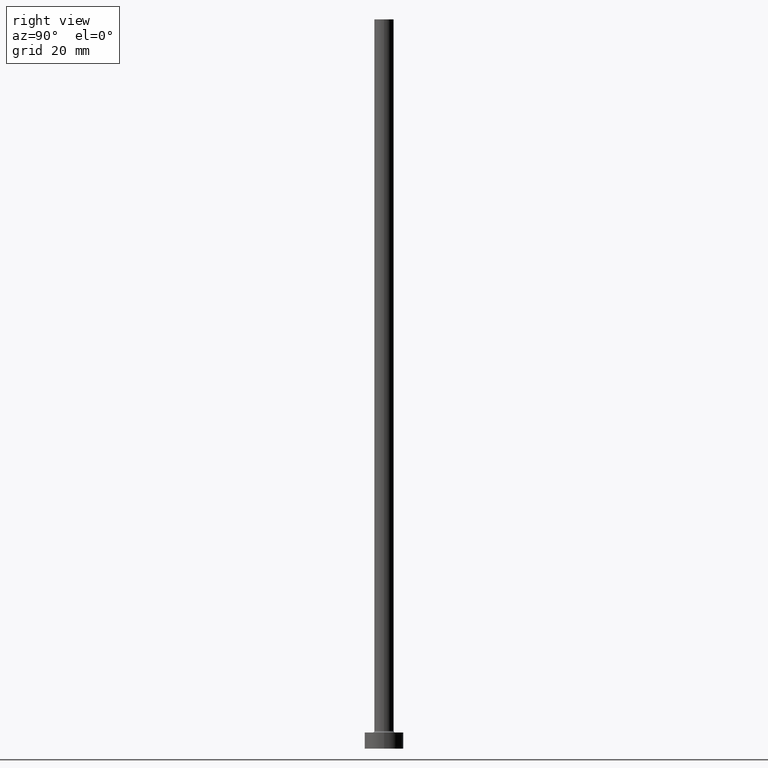
[diagram: clean part render]
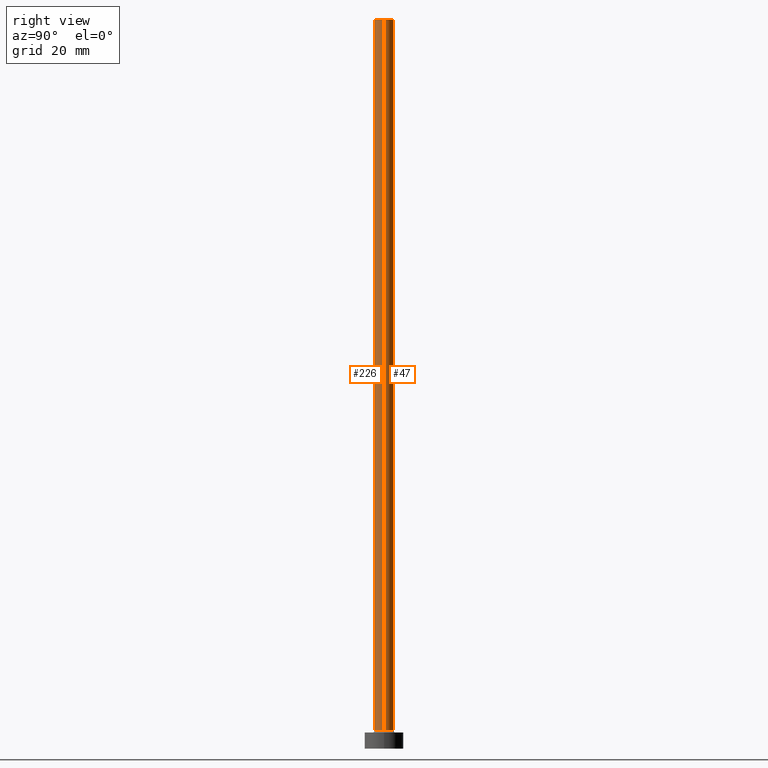
[diagram: same view with one multi-face feature highlighted, each face labeled with its STEP entity id]
A machine part, right view. The highlighted faces form ONE feature: a constant-radius fillet chain: 2 tangent blend faces with common blend radius 3 mm. The faces share edges in the B-rep.
Their STEP definitions:
[1] entity #47 (Cylinder):
#2 = LINE ( 'NONE', #175, #439 ) ;
#30 = CARTESIAN_POINT ( 'NONE',  ( -3.000000000000000444, 0.000000000000000000, 225.0000000000000000 ) ) ;
#40 = CARTESIAN_POINT ( 'NONE',  ( 0.000000000000000000, 0.000000000000000000, 225.0000000000000000 ) ) ;
#42 = AXIS2_PLACEMENT_3D ( 'NONE', #171, #131, #205 ) ;
#47 = ADVANCED_FACE ( 'NONE', ( #268 ), #413, .T. ) ;
#53 = CARTESIAN_POINT ( 'NONE',  ( 3.000000000000000444, 3.673940397442060361E-16, 5.500000000000005329 ) ) ;
#85 = VERTEX_POINT ( 'NONE', #30 ) ;
#90 = CARTESIAN_POINT ( 'NONE',  ( 0.000000000000000000, 0.000000000000000000, 225.0000000000000000 ) ) ;
#111 = VERTEX_POINT ( 'NONE', #278 ) ;
#131 = DIRECTION ( 'NONE',  ( 0.000000000000000000, 0.000000000000000000, 1.000000000000000000 ) ) ;
#139 = DIRECTION ( 'NONE',  ( -0.000000000000000000, -0.000000000000000000, -1.000000000000000000 ) ) ;
#142 = DIRECTION ( 'NONE',  ( -0.000000000000000000, -0.000000000000000000, -1.000000000000000000 ) ) ;
#144 = ORIENTED_EDGE ( 'NONE', *, *, #356, .T. ) ;
#147 = DIRECTION ( 'NONE',  ( 1.000000000000000000, 0.000000000000000000, 0.000000000000000000 ) ) ;
#160 = CIRCLE ( 'NONE', #329, 3.000000000000000444 ) ;
#163 = EDGE_CURVE ( 'NONE', #431, #111, #375, .T. ) ;
#171 = CARTESIAN_POINT ( 'NONE',  ( 0.000000000000000000, 0.000000000000000000, 5.500000000000005329 ) ) ;
#175 = CARTESIAN_POINT ( 'NONE',  ( -3.000000000000000444, 0.000000000000000000, 225.0000000000000000 ) ) ;
#182 = VECTOR ( 'NONE', #139, 1000.000000000000000 ) ;
#205 = DIRECTION ( 'NONE',  ( 1.000000000000000000, 0.000000000000000000, 0.000000000000000000 ) ) ;
#211 = VERTEX_POINT ( 'NONE', #387 ) ;
#219 = EDGE_LOOP ( 'NONE', ( #287, #144, #297, #399 ) ) ;
#231 = DIRECTION ( 'NONE',  ( -0.000000000000000000, -0.000000000000000000, -1.000000000000000000 ) ) ;
#268 = FACE_OUTER_BOUND ( 'NONE', #219, .T. ) ;
#278 = CARTESIAN_POINT ( 'NONE',  ( -3.000000000000000444, 0.000000000000000000, 5.500000000000005329 ) ) ;
#287 = ORIENTED_EDGE ( 'NONE', *, *, #326, .F. ) ;
#293 = CARTESIAN_POINT ( 'NONE',  ( 3.000000000000000444, 3.673940397442060361E-16, 225.0000000000000000 ) ) ;
#297 = ORIENTED_EDGE ( 'NONE', *, *, #163, .T. ) ;
#326 = EDGE_CURVE ( 'NONE', #211, #85, #160, .T. ) ;
#329 = AXIS2_PLACEMENT_3D ( 'NONE', #40, #361, #147 ) ;
#330 = LINE ( 'NONE', #293, #182 ) ;
#342 = EDGE_CURVE ( 'NONE', #85, #111, #2, .T. ) ;
#356 = EDGE_CURVE ( 'NONE', #211, #431, #330, .T. ) ;
#357 = AXIS2_PLACEMENT_3D ( 'NONE', #90, #231, #380 ) ;
#361 = DIRECTION ( 'NONE',  ( 0.000000000000000000, 0.000000000000000000, 1.000000000000000000 ) ) ;
#375 = CIRCLE ( 'NONE', #42, 3.000000000000000444 ) ;
#380 = DIRECTION ( 'NONE',  ( -1.000000000000000000, 0.000000000000000000, 0.000000000000000000 ) ) ;
#387 = CARTESIAN_POINT ( 'NONE',  ( 3.000000000000000444, 3.673940397442060361E-16, 225.0000000000000000 ) ) ;
#399 = ORIENTED_EDGE ( 'NONE', *, *, #342, .F. ) ;
#413 = CYLINDRICAL_SURFACE ( 'NONE', #357, 3.000000000000000444 ) ;
#431 = VERTEX_POINT ( 'NONE', #53 ) ;
#439 = VECTOR ( 'NONE', #142, 1000.000000000000000 ) ;
[2] entity #226 (Cylinder):
#2 = LINE ( 'NONE', #175, #439 ) ;
#7 = DIRECTION ( 'NONE',  ( 0.000000000000000000, 0.000000000000000000, 1.000000000000000000 ) ) ;
#12 = ORIENTED_EDGE ( 'NONE', *, *, #214, .T. ) ;
#13 = CIRCLE ( 'NONE', #351, 3.000000000000000444 ) ;
#30 = CARTESIAN_POINT ( 'NONE',  ( -3.000000000000000444, 0.000000000000000000, 225.0000000000000000 ) ) ;
#34 = DIRECTION ( 'NONE',  ( 0.000000000000000000, 0.000000000000000000, 1.000000000000000000 ) ) ;
#53 = CARTESIAN_POINT ( 'NONE',  ( 3.000000000000000444, 3.673940397442060361E-16, 5.500000000000005329 ) ) ;
#73 = EDGE_LOOP ( 'NONE', ( #152, #109, #434, #12 ) ) ;
#85 = VERTEX_POINT ( 'NONE', #30 ) ;
#97 = FACE_OUTER_BOUND ( 'NONE', #73, .T. ) ;
#109 = ORIENTED_EDGE ( 'NONE', *, *, #392, .F. ) ;
#111 = VERTEX_POINT ( 'NONE', #278 ) ;
#139 = DIRECTION ( 'NONE',  ( -0.000000000000000000, -0.000000000000000000, -1.000000000000000000 ) ) ;
#142 = DIRECTION ( 'NONE',  ( -0.000000000000000000, -0.000000000000000000, -1.000000000000000000 ) ) ;
#143 = AXIS2_PLACEMENT_3D ( 'NONE', #459, #400, #176 ) ;
#152 = ORIENTED_EDGE ( 'NONE', *, *, #356, .F. ) ;
#175 = CARTESIAN_POINT ( 'NONE',  ( -3.000000000000000444, 0.000000000000000000, 225.0000000000000000 ) ) ;
#176 = DIRECTION ( 'NONE',  ( -1.000000000000000000, 0.000000000000000000, 0.000000000000000000 ) ) ;
#182 = VECTOR ( 'NONE', #139, 1000.000000000000000 ) ;
#208 = CARTESIAN_POINT ( 'NONE',  ( 0.000000000000000000, 0.000000000000000000, 5.500000000000005329 ) ) ;
#211 = VERTEX_POINT ( 'NONE', #387 ) ;
#214 = EDGE_CURVE ( 'NONE', #111, #431, #13, .T. ) ;
#226 = ADVANCED_FACE ( 'NONE', ( #97 ), #389, .T. ) ;
#250 = CIRCLE ( 'NONE', #266, 3.000000000000000444 ) ;
#266 = AXIS2_PLACEMENT_3D ( 'NONE', #427, #7, #407 ) ;
#278 = CARTESIAN_POINT ( 'NONE',  ( -3.000000000000000444, 0.000000000000000000, 5.500000000000005329 ) ) ;
#293 = CARTESIAN_POINT ( 'NONE',  ( 3.000000000000000444, 3.673940397442060361E-16, 225.0000000000000000 ) ) ;
#312 = DIRECTION ( 'NONE',  ( 1.000000000000000000, 0.000000000000000000, 0.000000000000000000 ) ) ;
#330 = LINE ( 'NONE', #293, #182 ) ;
#342 = EDGE_CURVE ( 'NONE', #85, #111, #2, .T. ) ;
#351 = AXIS2_PLACEMENT_3D ( 'NONE', #208, #34, #312 ) ;
#356 = EDGE_CURVE ( 'NONE', #211, #431, #330, .T. ) ;
#387 = CARTESIAN_POINT ( 'NONE',  ( 3.000000000000000444, 3.673940397442060361E-16, 225.0000000000000000 ) ) ;
#389 = CYLINDRICAL_SURFACE ( 'NONE', #143, 3.000000000000000444 ) ;
#392 = EDGE_CURVE ( 'NONE', #85, #211, #250, .T. ) ;
#400 = DIRECTION ( 'NONE',  ( -0.000000000000000000, -0.000000000000000000, -1.000000000000000000 ) ) ;
#407 = DIRECTION ( 'NONE',  ( 1.000000000000000000, 0.000000000000000000, 0.000000000000000000 ) ) ;
#427 = CARTESIAN_POINT ( 'NONE',  ( 0.000000000000000000, 0.000000000000000000, 225.0000000000000000 ) ) ;
#431 = VERTEX_POINT ( 'NONE', #53 ) ;
#434 = ORIENTED_EDGE ( 'NONE', *, *, #342, .T. ) ;
#439 = VECTOR ( 'NONE', #142, 1000.000000000000000 ) ;
#459 = CARTESIAN_POINT ( 'NONE',  ( 0.000000000000000000, 0.000000000000000000, 225.0000000000000000 ) ) ;